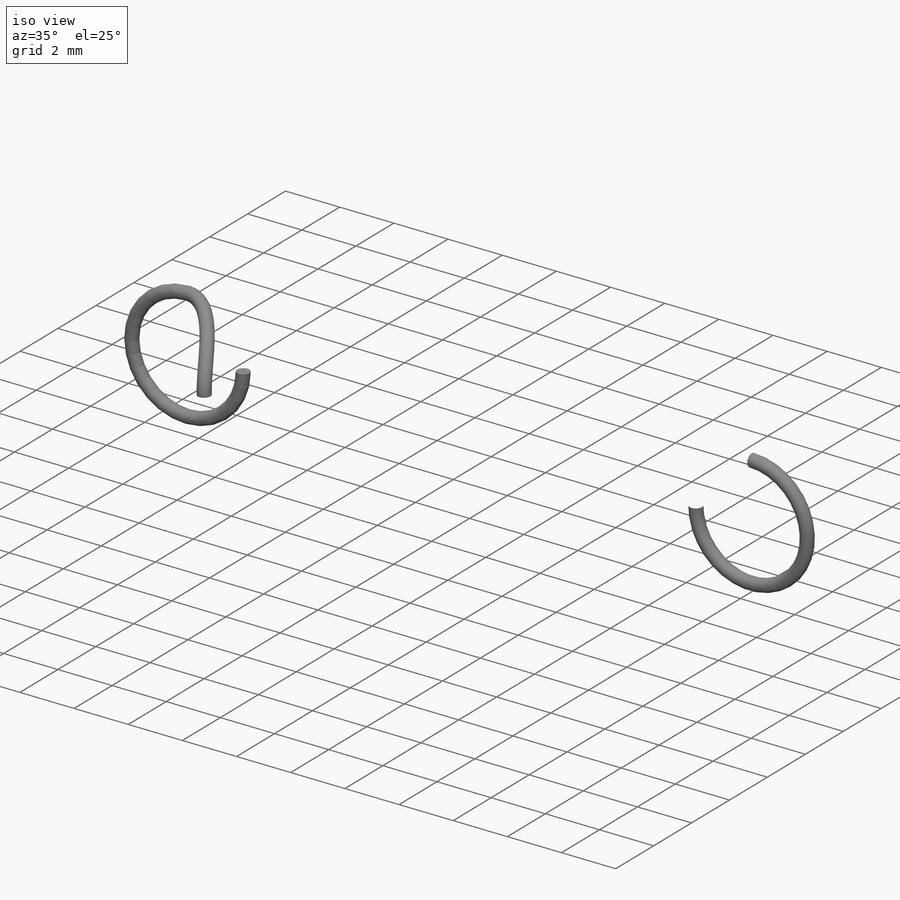
[diagram: iso view]
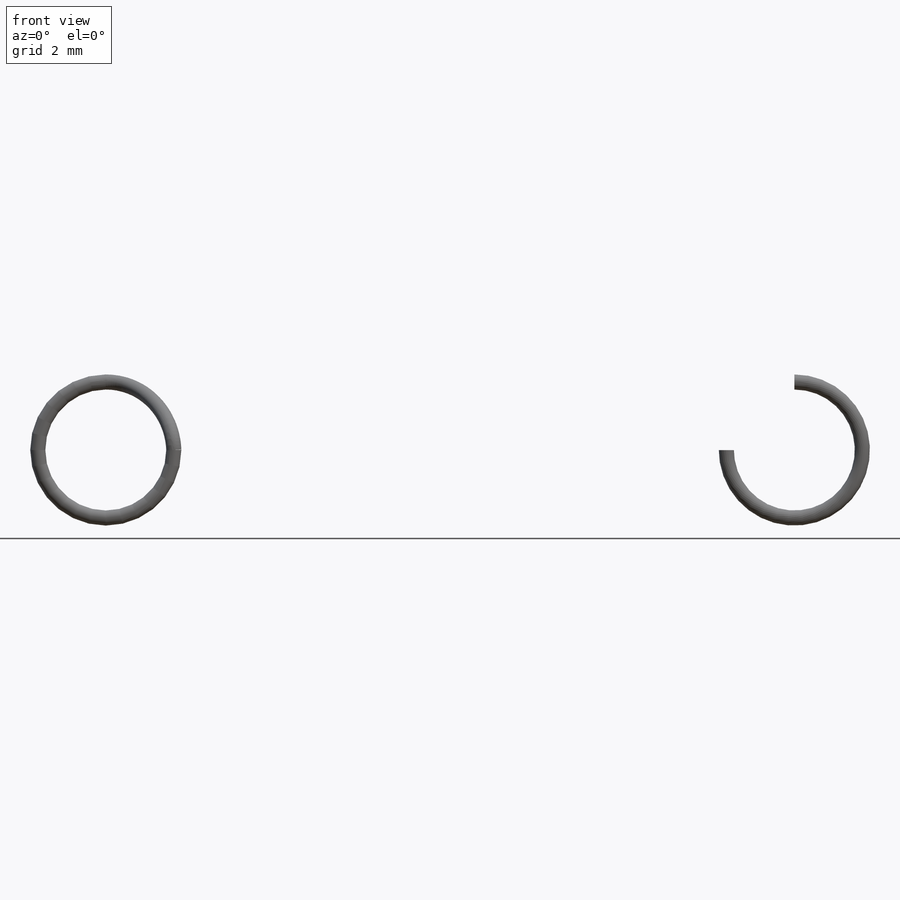
[diagram: front view]
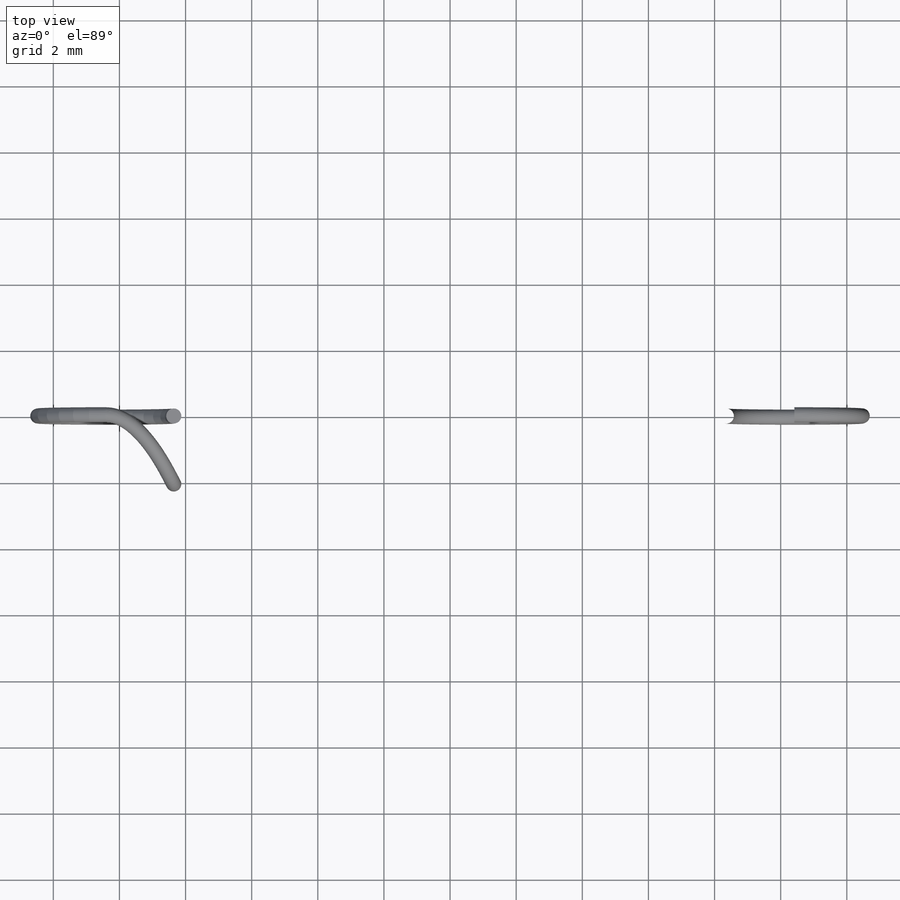
[diagram: top view]
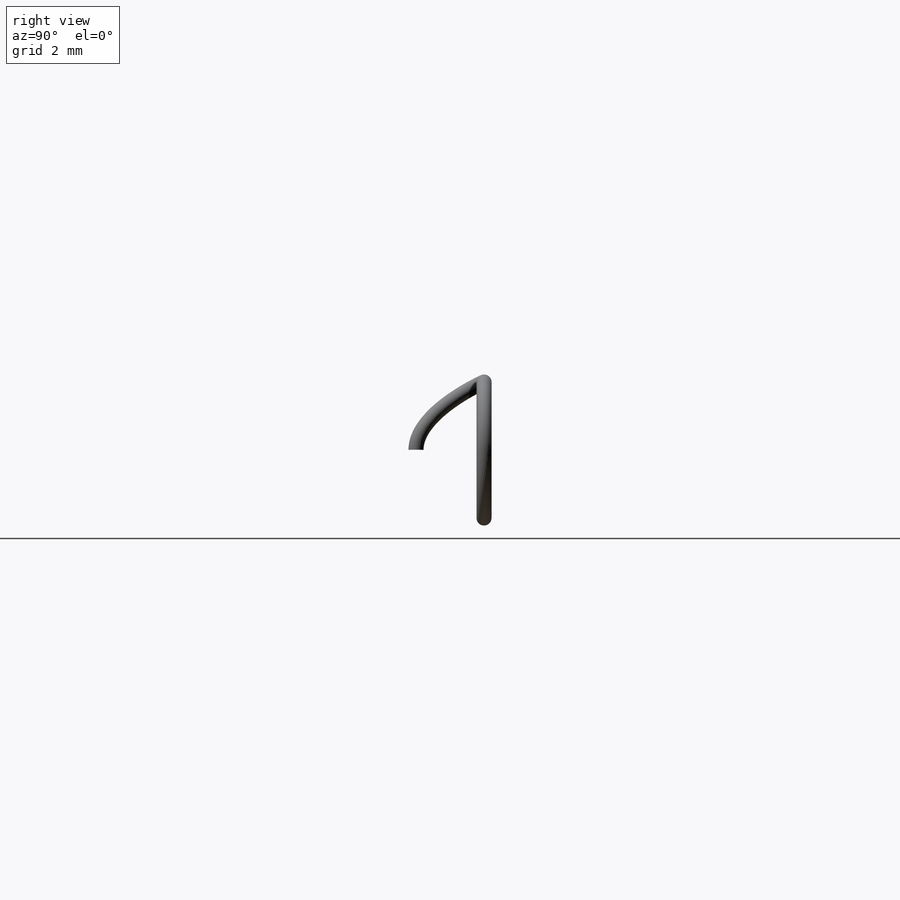
[diagram: right view]
SOLIDWORKS PART (.sldprt)
format: sldprt  version: not decoded by parser v0  size: 3,053,568 bytes
history: native  units: mm
features: sketch x10, plane x2, material x1, helix x1, sweep x1, cut_extrude x1 (+14 scaffold rows collapsed)
feature tree (30):
  scaffold x14  (default folders/planes/origin — collapsed)
  material  "Material <not specified>"
  sketch  "Sketch1"  dims[Overall Lg.=25.4mm Spring OD=4.572mm Wire OD=0.4572mm Extended Lg.=62.484mm]
  sketch  "Sketch2"  dims[c1.D1=12.7mm c2.D1=0.0deg c2.D2=16.7132mm]
  plane  "Plane1"
  sketch  "Sketch3"
  helix  "Helix/Spiral1"  Pitch=16.7132mm
  sketch  "Sketch4"  dims[D1=~0.00254mm]
  sketch  "Sketch5"
  plane  "Plane2"
  sketch  "3DSketch1"  dims[c1.D1=~5.102099mm c2.D1=3.429mm c2.D2=~2.441672mm c3.D2=3.429mm]
  sketch  "3DSketch2"  dims[c1.D1=~3.493548mm c2.D1=3.429mm c2.D2=~2.441667mm c3.D2=3.429mm]
  sketch  "Sketch6"
  sweep  "Sweep1"
  sketch  "Sketch7"
  sketch  "Sketch9"  dims[D1=0.6858mm]
  cut_extrude  "Cut-Extrude1"  Depth=0.00254mm
decode coverage: 8 of 13 modeling features carry decoded parameters
note: ~ marks probable driven/reference dimensions
note: suppression state not decoded; provenance and decode notes live in map.json
